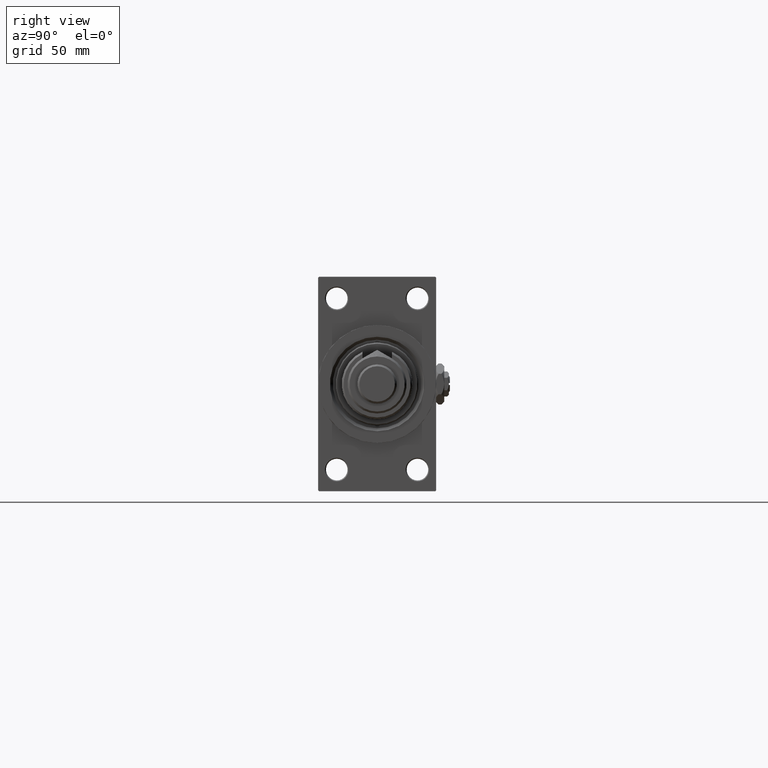
[diagram: clean part render]
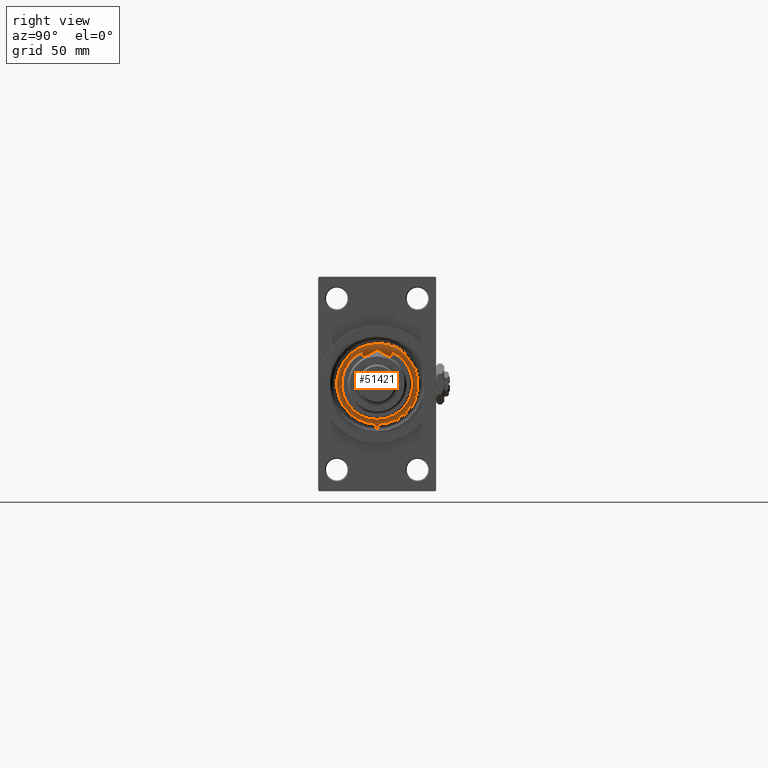
[diagram: same view with one face highlighted and labeled with its STEP entity id]
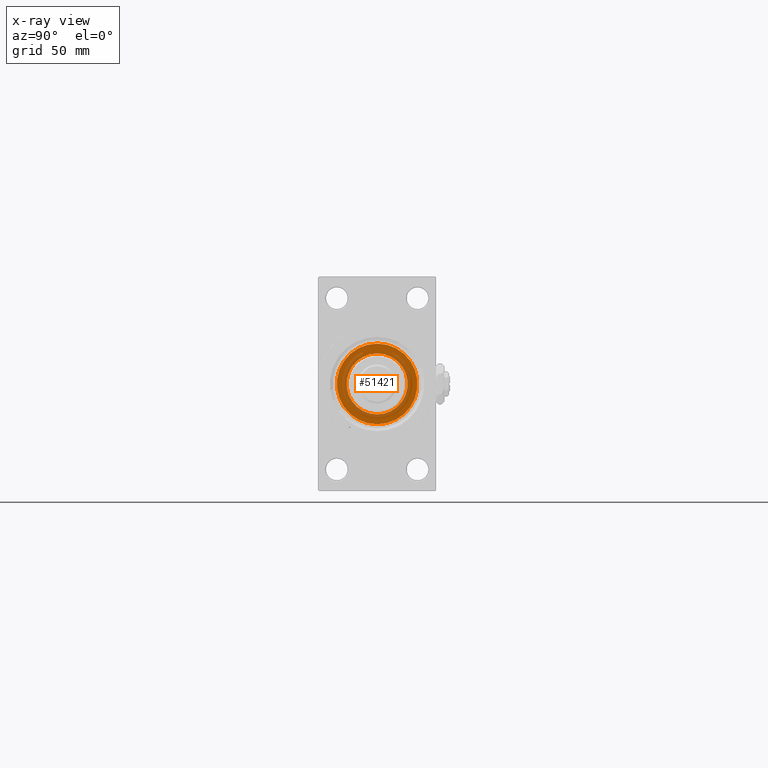
[diagram: x-ray of the same camera — body ghosted, the highlighted face saturated]
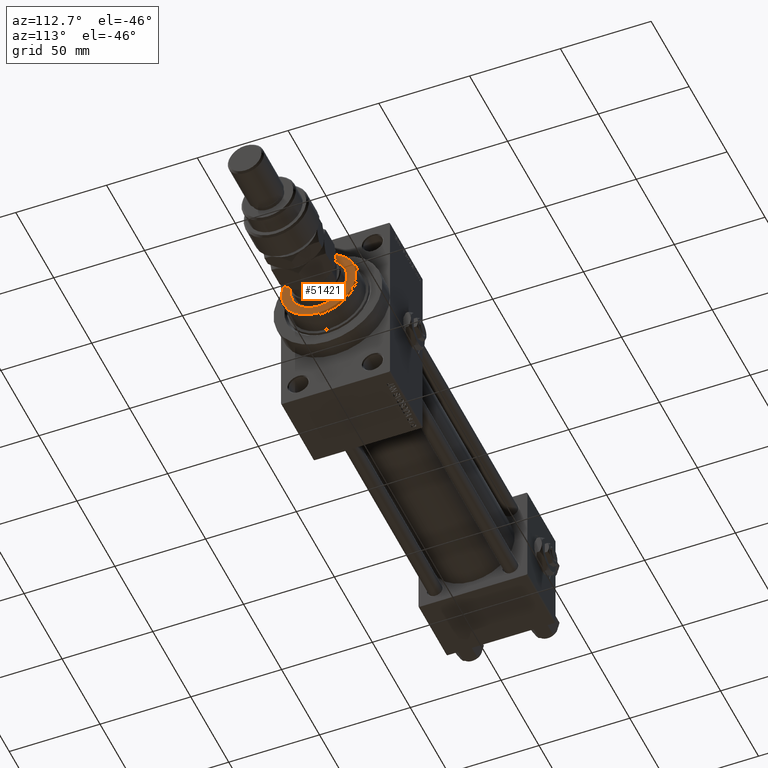
[diagram: same view with one face highlighted and labeled with its STEP entity id]
A machine part, right view. The second image highlights one B-rep face of the part: STEP entity #51421.
The next image is the same camera in x-ray: the body ghosted, the highlighted face saturated — about 40% of this face is hidden behind the body in this view.
A second angle (auxiliary view) of the same face is appended — the face is thin or edge-on in the first view.
In plain terms, the highlighted planar face has unit normal (1, -0, -0).
Its self-contained STEP definition (entity closure, byte-faithful):
#151 = PLANE ( 'NONE',  #37222 ) ;
#152 = AXIS2_PLACEMENT_3D ( 'NONE', #202, #49255, #16108 ) ;
#202 = CARTESIAN_POINT ( 'NONE',  ( 0.000000000000000000, 0.000000000000000000, 55.26000000000000512 ) ) ;
#1805 = DIRECTION ( 'NONE',  ( 0.000000000000000000, 0.000000000000000000, 1.000000000000000000 ) ) ;
#2477 = AXIS2_PLACEMENT_3D ( 'NONE', #23354, #2952, #24119 ) ;
#2569 = CARTESIAN_POINT ( 'NONE',  ( 0.000000000000000000, 0.000000000000000000, 55.26000000000000512 ) ) ;
#2952 = DIRECTION ( 'NONE',  ( 0.000000000000000000, 0.000000000000000000, 1.000000000000000000 ) ) ;
#3540 = VERTEX_POINT ( 'NONE', #51199 ) ;
#4680 = ORIENTED_EDGE ( 'NONE', *, *, #22489, .T. ) ;
#4720 = EDGE_CURVE ( 'NONE', #3540, #43305, #17969, .T. ) ;
#8362 = FACE_OUTER_BOUND ( 'NONE', #34554, .T. ) ;
#8888 = DIRECTION ( 'NONE',  ( 1.000000000000000000, 0.000000000000000000, -0.000000000000000000 ) ) ;
#13290 = EDGE_CURVE ( 'NONE', #45842, #51456, #14855, .T. ) ;
#14855 = CIRCLE ( 'NONE', #16541, 20.50000000000000355 ) ;
#15756 = AXIS2_PLACEMENT_3D ( 'NONE', #2569, #1805, #50838 ) ;
#16108 = DIRECTION ( 'NONE',  ( 1.000000000000000000, 0.000000000000000000, 0.000000000000000000 ) ) ;
#16541 = AXIS2_PLACEMENT_3D ( 'NONE', #36633, #40866, #29174 ) ;
#17738 = CIRCLE ( 'NONE', #2477, 15.50000000000000000 ) ;
#17969 = CIRCLE ( 'NONE', #152, 15.50000000000000000 ) ;
#20299 = CARTESIAN_POINT ( 'NONE',  ( 0.000000000000000000, 0.000000000000000000, 55.26000000000000512 ) ) ;
#22489 = EDGE_CURVE ( 'NONE', #51456, #45842, #38640, .T. ) ;
#23354 = CARTESIAN_POINT ( 'NONE',  ( 0.000000000000000000, 0.000000000000000000, 55.26000000000000512 ) ) ;
#24119 = DIRECTION ( 'NONE',  ( 1.000000000000000000, 0.000000000000000000, 0.000000000000000000 ) ) ;
#29174 = DIRECTION ( 'NONE',  ( 1.000000000000000000, 0.000000000000000000, 0.000000000000000000 ) ) ;
#32356 = EDGE_CURVE ( 'NONE', #43305, #3540, #17738, .T. ) ;
#33278 = DIRECTION ( 'NONE',  ( 0.000000000000000000, 0.000000000000000000, 1.000000000000000000 ) ) ;
#34554 = EDGE_LOOP ( 'NONE', ( #4680, #41863 ) ) ;
#35753 = CARTESIAN_POINT ( 'NONE',  ( 20.50000000000000355, 2.541142108230758269E-15, 55.26000000000000512 ) ) ;
#36633 = CARTESIAN_POINT ( 'NONE',  ( 0.000000000000000000, 0.000000000000000000, 55.26000000000000512 ) ) ;
#37222 = AXIS2_PLACEMENT_3D ( 'NONE', #20299, #33278, #8888 ) ;
#38631 = CARTESIAN_POINT ( 'NONE',  ( 15.50000000000000000, 0.000000000000000000, 55.26000000000000512 ) ) ;
#38640 = CIRCLE ( 'NONE', #15756, 20.50000000000000355 ) ;
#40866 = DIRECTION ( 'NONE',  ( 0.000000000000000000, 0.000000000000000000, 1.000000000000000000 ) ) ;
#41863 = ORIENTED_EDGE ( 'NONE', *, *, #13290, .T. ) ;
#43305 = VERTEX_POINT ( 'NONE', #38631 ) ;
#45842 = VERTEX_POINT ( 'NONE', #35753 ) ;
#48245 = ORIENTED_EDGE ( 'NONE', *, *, #4720, .F. ) ;
#48939 = FACE_BOUND ( 'NONE', #51087, .T. ) ;
#49206 = CARTESIAN_POINT ( 'NONE',  ( -20.50000000000000355, 0.000000000000000000, 55.26000000000000512 ) ) ;
#49255 = DIRECTION ( 'NONE',  ( 0.000000000000000000, 0.000000000000000000, 1.000000000000000000 ) ) ;
#50816 = ORIENTED_EDGE ( 'NONE', *, *, #32356, .F. ) ;
#50838 = DIRECTION ( 'NONE',  ( 1.000000000000000000, 0.000000000000000000, 0.000000000000000000 ) ) ;
#51087 = EDGE_LOOP ( 'NONE', ( #50816, #48245 ) ) ;
#51199 = CARTESIAN_POINT ( 'NONE',  ( -15.50000000000000000, 1.898202538678397557E-15, 55.26000000000000512 ) ) ;
#51421 = ADVANCED_FACE ( 'NONE', ( #48939, #8362 ), #151, .T. ) ;
#51456 = VERTEX_POINT ( 'NONE', #49206 ) ;